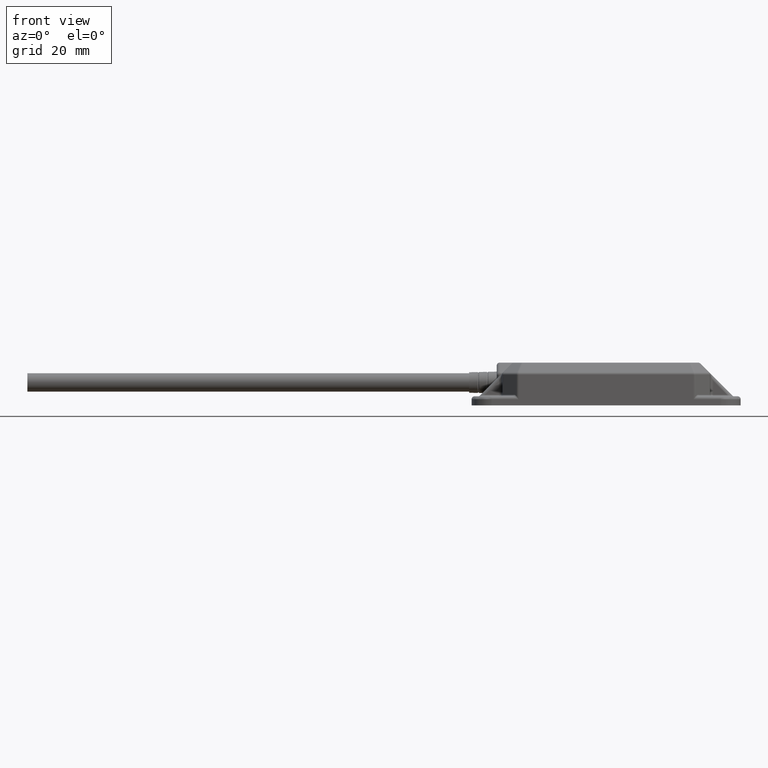
[diagram: clean part render]
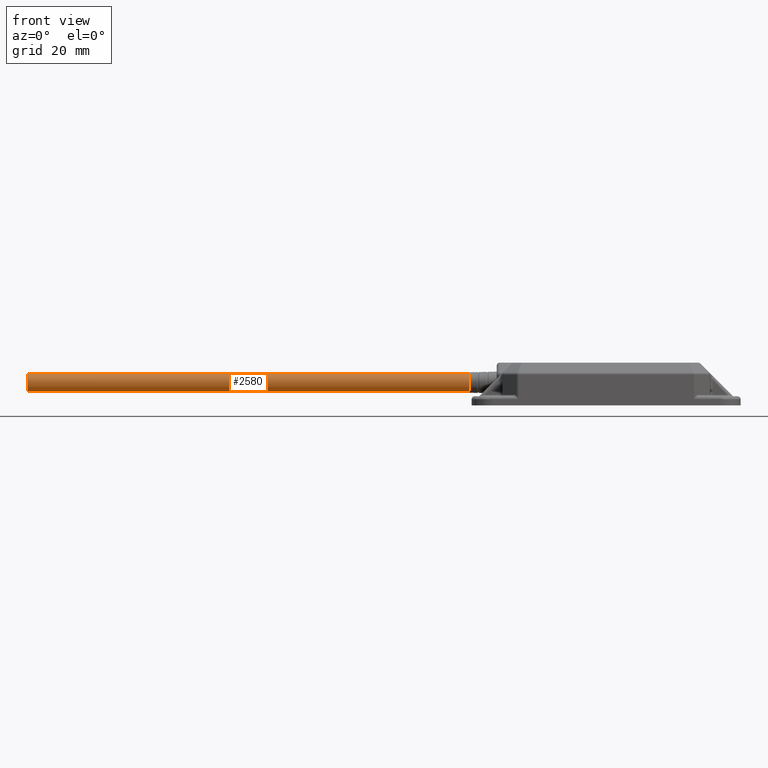
[diagram: same view with one face highlighted and labeled with its STEP entity id]
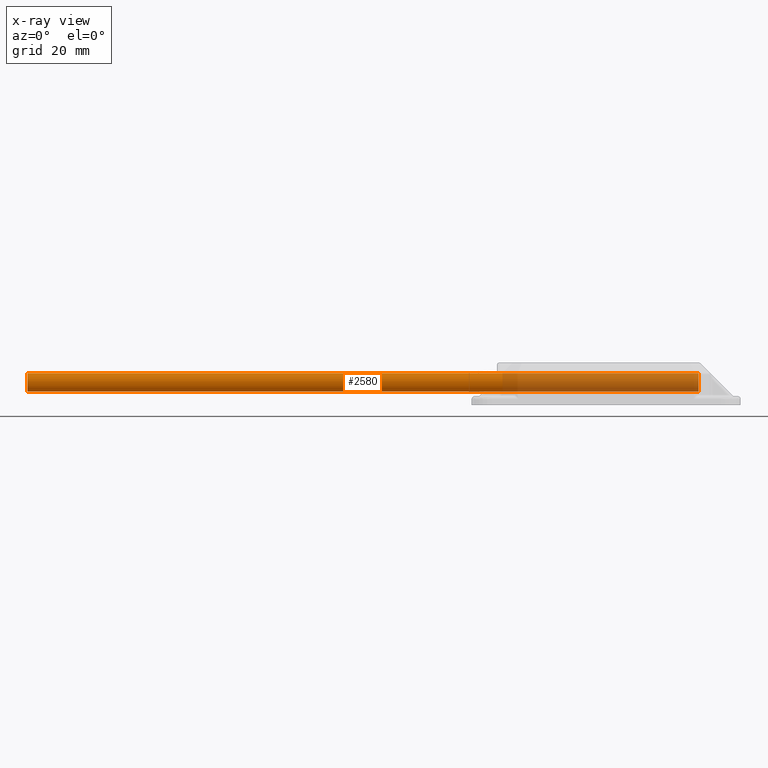
[diagram: x-ray of the same camera — body ghosted, the highlighted face saturated]
A machine part, front view. The second image highlights one B-rep face of the part: STEP entity #2580.
The next image is the same camera in x-ray: the body ghosted, the highlighted face saturated — about 29% of this face is hidden behind the body in this view.
In plain terms, the highlighted cylindrical surface (edge-blend (fillet) strip) has radius 3 mm, axis along (1, 0, 0).
Its self-contained STEP definition (entity closure, byte-faithful):
#311 = CIRCLE ( 'NONE', #8109, 0.1181102362204724500 ) ;
#316 = VERTEX_POINT ( 'NONE', #18233 ) ;
#715 = VERTEX_POINT ( 'NONE', #3488 ) ;
#1107 = DIRECTION ( 'NONE',  ( -1.000000000000000000, 0.0000000000000000000, -0.0000000000000000000 ) ) ;
#1613 = ORIENTED_EDGE ( 'NONE', *, *, #19913, .F. ) ;
#2400 = EDGE_CURVE ( 'NONE', #9340, #715, #23995, .T. ) ;
#2580 = ADVANCED_FACE ( 'NONE', ( #17521 ), #13415, .T. ) ;
#2926 = VECTOR ( 'NONE', #8829, 39.37007874015748100 ) ;
#3488 = CARTESIAN_POINT ( 'NONE',  ( 2.921259842519685600, 0.7283464566929135400, 0.1771653543307084900 ) ) ;
#4687 = AXIS2_PLACEMENT_3D ( 'NONE', #15210, #22899, #13392 ) ;
#5464 = VECTOR ( 'NONE', #8907, 39.37007874015748100 ) ;
#5529 = EDGE_LOOP ( 'NONE', ( #1613, #11836, #19540, #7167 ) ) ;
#5735 = CARTESIAN_POINT ( 'NONE',  ( 2.921259842519685600, 0.7283464566929135400, 0.2952755905511809100 ) ) ;
#5754 = CARTESIAN_POINT ( 'NONE',  ( -7.708661417322830700, 0.7283464566929135400, 0.4133858267716533600 ) ) ;
#7167 = ORIENTED_EDGE ( 'NONE', *, *, #21212, .T. ) ;
#7837 = AXIS2_PLACEMENT_3D ( 'NONE', #5735, #17239, #13292 ) ;
#7909 = CARTESIAN_POINT ( 'NONE',  ( -5.721385443577963400, 0.7283464566929135400, 0.1771653543307084900 ) ) ;
#8109 = AXIS2_PLACEMENT_3D ( 'NONE', #16052, #1107, #19728 ) ;
#8829 = DIRECTION ( 'NONE',  ( 1.000000000000000000, 0.0000000000000000000, 0.0000000000000000000 ) ) ;
#8907 = DIRECTION ( 'NONE',  ( 1.000000000000000000, 0.0000000000000000000, 0.0000000000000000000 ) ) ;
#9340 = VERTEX_POINT ( 'NONE', #7909 ) ;
#11836 = ORIENTED_EDGE ( 'NONE', *, *, #12904, .F. ) ;
#11946 = VERTEX_POINT ( 'NONE', #22240 ) ;
#12764 = CARTESIAN_POINT ( 'NONE',  ( -7.708661417322830700, 0.7283464566929135400, 0.1771653543307084900 ) ) ;
#12904 = EDGE_CURVE ( 'NONE', #9340, #316, #311, .T. ) ;
#13292 = DIRECTION ( 'NONE',  ( 0.0000000000000000000, 0.0000000000000000000, -1.000000000000000000 ) ) ;
#13392 = DIRECTION ( 'NONE',  ( 0.0000000000000000000, 0.0000000000000000000, -1.000000000000000000 ) ) ;
#13415 = CYLINDRICAL_SURFACE ( 'NONE', #4687, 0.1181102362204724500 ) ;
#15210 = CARTESIAN_POINT ( 'NONE',  ( -7.708661417322830700, 0.7283464566929135400, 0.2952755905511809100 ) ) ;
#16052 = CARTESIAN_POINT ( 'NONE',  ( -5.721385443577963400, 0.7283464566929135400, 0.2952755905511809100 ) ) ;
#17239 = DIRECTION ( 'NONE',  ( -1.000000000000000000, -0.0000000000000000000, -0.0000000000000000000 ) ) ;
#17521 = FACE_OUTER_BOUND ( 'NONE', #5529, .T. ) ;
#18233 = CARTESIAN_POINT ( 'NONE',  ( -5.721385443577963400, 0.7283464566929135400, 0.4133858267716533600 ) ) ;
#19540 = ORIENTED_EDGE ( 'NONE', *, *, #2400, .T. ) ;
#19728 = DIRECTION ( 'NONE',  ( 0.0000000000000000000, 0.0000000000000000000, -1.000000000000000000 ) ) ;
#19742 = CIRCLE ( 'NONE', #7837, 0.1181102362204724500 ) ;
#19913 = EDGE_CURVE ( 'NONE', #316, #11946, #21579, .T. ) ;
#21212 = EDGE_CURVE ( 'NONE', #715, #11946, #19742, .T. ) ;
#21579 = LINE ( 'NONE', #5754, #5464 ) ;
#22240 = CARTESIAN_POINT ( 'NONE',  ( 2.921259842519685600, 0.7283464566929135400, 0.4133858267716533600 ) ) ;
#22899 = DIRECTION ( 'NONE',  ( 1.000000000000000000, 0.0000000000000000000, 0.0000000000000000000 ) ) ;
#23995 = LINE ( 'NONE', #12764, #2926 ) ;